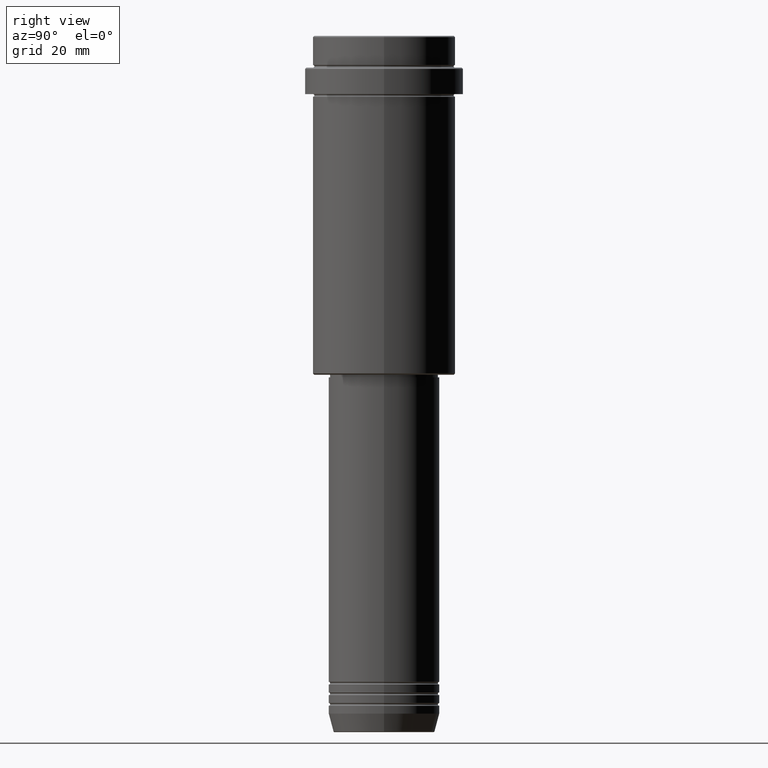
[diagram: clean part render]
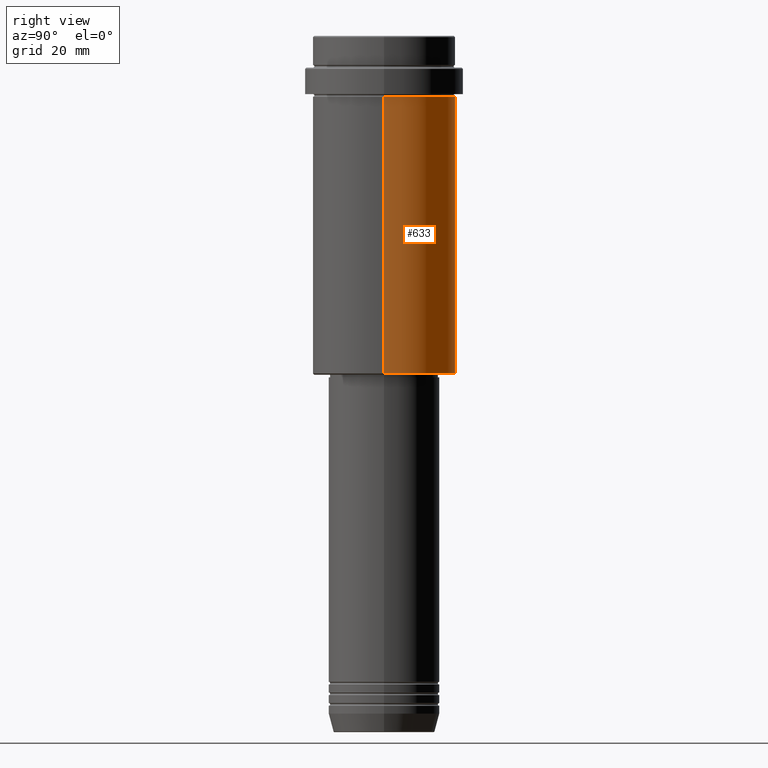
[diagram: same view with one face highlighted and labeled with its STEP entity id]
A machine part, right view. The second image highlights one B-rep face of the part: STEP entity #633.
In plain terms, the highlighted cylindrical surface (partial cylindrical patch) has radius 27 mm, axis along (-0, -0, 1).
Its self-contained STEP definition (entity closure, byte-faithful):
#4 = DIRECTION ( 'NONE',  ( -0.000000000000000000, -0.000000000000000000, 1.000000000000000000 ) ) ;
#34 = EDGE_LOOP ( 'NONE', ( #717, #359, #1234, #761 ) ) ;
#97 = EDGE_CURVE ( 'NONE', #750, #1290, #659, .T. ) ;
#116 = FACE_OUTER_BOUND ( 'NONE', #34, .T. ) ;
#177 = CARTESIAN_POINT ( 'NONE',  ( -26.99999999999999645, 3.306546357697853339E-15, 0.000000000000000000 ) ) ;
#238 = EDGE_CURVE ( 'NONE', #683, #268, #700, .T. ) ;
#263 = VECTOR ( 'NONE', #313, 1000.000000000000000 ) ;
#268 = VERTEX_POINT ( 'NONE', #1217 ) ;
#276 = DIRECTION ( 'NONE',  ( -0.000000000000000000, -0.000000000000000000, 1.000000000000000000 ) ) ;
#313 = DIRECTION ( 'NONE',  ( -0.000000000000000000, -0.000000000000000000, 1.000000000000000000 ) ) ;
#359 = ORIENTED_EDGE ( 'NONE', *, *, #1391, .T. ) ;
#523 = DIRECTION ( 'NONE',  ( -0.000000000000000000, -0.000000000000000000, 1.000000000000000000 ) ) ;
#557 = CYLINDRICAL_SURFACE ( 'NONE', #822, 26.99999999999999645 ) ;
#562 = CARTESIAN_POINT ( 'NONE',  ( 0.000000000000000000, 0.000000000000000000, 0.000000000000000000 ) ) ;
#633 = ADVANCED_FACE ( 'NONE', ( #116 ), #557, .T. ) ;
#659 = CIRCLE ( 'NONE', #844, 26.99999999999999645 ) ;
#666 = CARTESIAN_POINT ( 'NONE',  ( 0.000000000000000000, 0.000000000000000000, -23.00000000000000000 ) ) ;
#683 = VERTEX_POINT ( 'NONE', #877 ) ;
#700 = CIRCLE ( 'NONE', #819, 26.99999999999999645 ) ;
#708 = VECTOR ( 'NONE', #737, 1000.000000000000000 ) ;
#717 = ORIENTED_EDGE ( 'NONE', *, *, #97, .T. ) ;
#737 = DIRECTION ( 'NONE',  ( -0.000000000000000000, -0.000000000000000000, 1.000000000000000000 ) ) ;
#750 = VERTEX_POINT ( 'NONE', #1238 ) ;
#761 = ORIENTED_EDGE ( 'NONE', *, *, #1344, .F. ) ;
#768 = DIRECTION ( 'NONE',  ( 1.000000000000000000, 0.000000000000000000, 0.000000000000000000 ) ) ;
#819 = AXIS2_PLACEMENT_3D ( 'NONE', #666, #276, #1382 ) ;
#822 = AXIS2_PLACEMENT_3D ( 'NONE', #562, #4, #768 ) ;
#831 = CARTESIAN_POINT ( 'NONE',  ( 26.99999999999999645, 0.000000000000000000, 0.000000000000000000 ) ) ;
#844 = AXIS2_PLACEMENT_3D ( 'NONE', #1168, #523, #1312 ) ;
#877 = CARTESIAN_POINT ( 'NONE',  ( 26.99999999999999645, 0.000000000000000000, -23.00000000000000000 ) ) ;
#1159 = LINE ( 'NONE', #177, #263 ) ;
#1168 = CARTESIAN_POINT ( 'NONE',  ( 0.000000000000000000, 0.000000000000000000, -127.5000000000000568 ) ) ;
#1217 = CARTESIAN_POINT ( 'NONE',  ( -26.99999999999999645, 3.306546357697853339E-15, -23.00000000000000000 ) ) ;
#1234 = ORIENTED_EDGE ( 'NONE', *, *, #238, .F. ) ;
#1238 = CARTESIAN_POINT ( 'NONE',  ( 26.99999999999999645, 0.000000000000000000, -127.5000000000000568 ) ) ;
#1290 = VERTEX_POINT ( 'NONE', #1350 ) ;
#1312 = DIRECTION ( 'NONE',  ( -1.000000000000000000, 0.000000000000000000, 0.000000000000000000 ) ) ;
#1344 = EDGE_CURVE ( 'NONE', #750, #683, #1365, .T. ) ;
#1350 = CARTESIAN_POINT ( 'NONE',  ( -26.99999999999999645, 3.306546357697853339E-15, -127.5000000000000568 ) ) ;
#1365 = LINE ( 'NONE', #831, #708 ) ;
#1382 = DIRECTION ( 'NONE',  ( 1.000000000000000000, 0.000000000000000000, 0.000000000000000000 ) ) ;
#1391 = EDGE_CURVE ( 'NONE', #1290, #268, #1159, .T. ) ;